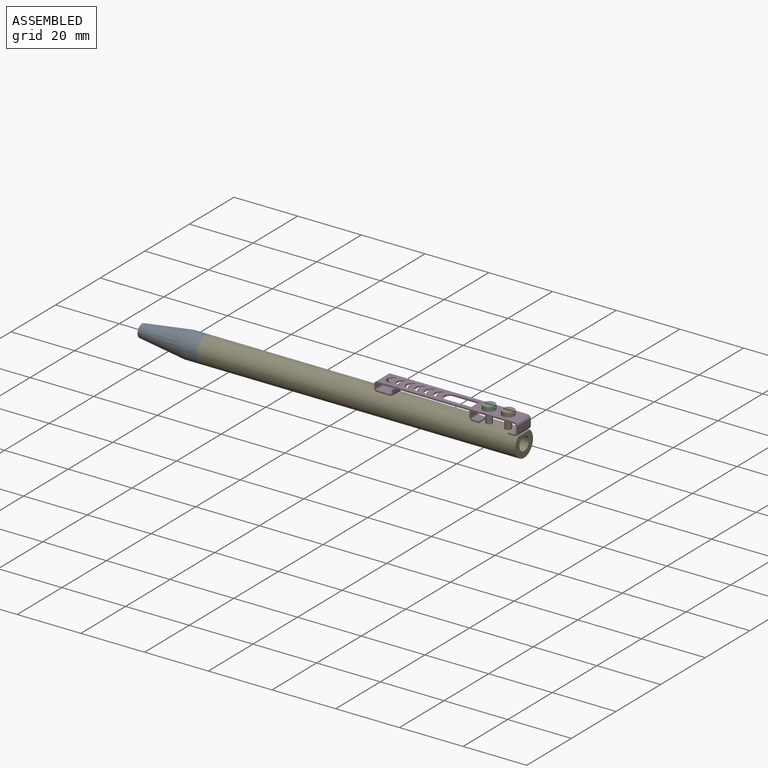
[diagram: assembled view]
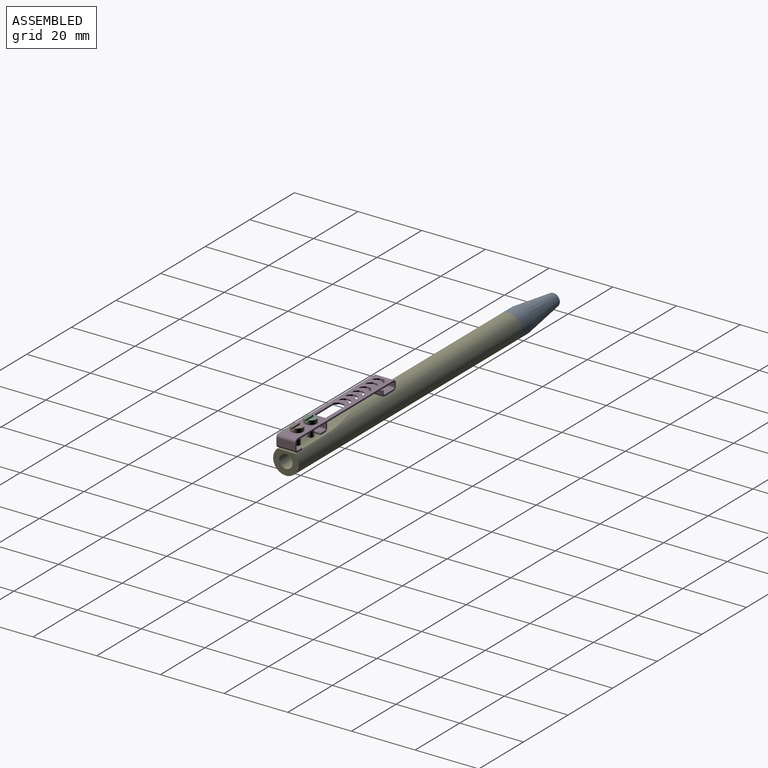
[diagram: assembled view, second angle]
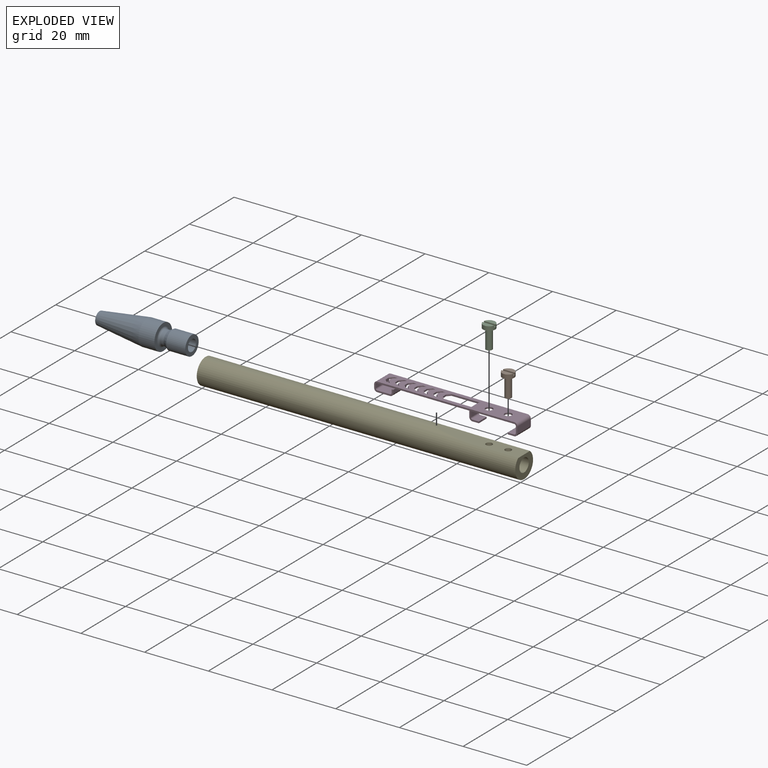
[diagram: exploded view]
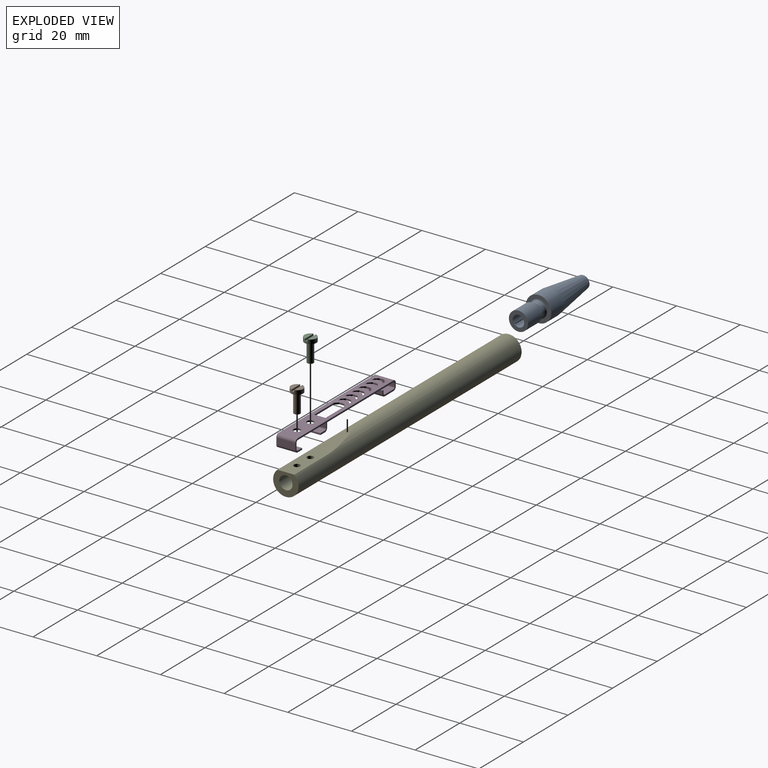
[diagram: exploded view, second angle]
ASSEMBLY  parts=5 mates=6
PART A: 13 faces, bbox 29x8x8 mm
  f0: cylinder r=4mm len=8mm, axis (1,0,0), area 125.7mm2, adj f1,f12
  f1: cone r=4mm half-angle=7.6deg, axis (1,0,0), area 285.2mm2, adj f0,f2
  f2: plane 4x4mm, normal (-1,0,0), area 9.4mm2, adj f1,f3
  f3: cylinder r=1mm len=5mm, axis (1,0,0), area 31.4mm2, adj f2,f4
  f4: plane 3.6x3.6mm, normal (1,0,0), area 7mm2, adj f3,f5
  f5: cylinder r=1.8mm len=24mm, axis (1,0,0), area 271.4mm2, adj f4,f6
  f6: plane 6x6mm, normal (1,0,0), area 18.1mm2, adj f5,f7
  f7: cylinder r=3mm len=6mm, axis (1,0,0), area 113.1mm2, adj f6,f8
  f8: cone r=3mm half-angle=30deg, axis (1,0,0), area 22.4mm2, adj f7,f9
  f9: torus R=2.85mm, axis (1,0,0), area 4.5mm2, adj f8,f10
  f10: cylinder r=2.25mm len=4.5mm, axis (1,0,0), area 13.3mm2, adj f9,f11
  f11: torus R=2.85mm, axis (1,0,0), area 14.6mm2, adj f10,f12
  f12: plane 8x8mm, normal (1,0,0), area 24.7mm2, adj f0,f11
PART B: 9 faces, bbox 3.8x7.3x3.8 mm
  f0: cylinder r=1.9mm len=3.8mm, axis (0,1,0), area 14.7mm2, adj f1,f4,f5,f6,f7,f8
  f1: plane 3.74x1.55mm, normal (0,-1,0), area 4.3mm2, adj f0,f7
  f2: cylinder r=1mm len=6mm, axis (0,1,0), area 37.7mm2, adj f3,f5
  f3: plane 2x2mm, normal (0,1,0), area 3.1mm2, adj f2
  f4: plane 3.74x1.55mm, normal (0,-1,0), area 4.3mm2, adj f0,f8
  f5: plane 3.8x3.8mm, normal (0,1,0), area 8.2mm2, adj f0,f2
  f6: plane 3.8x0.7mm, normal (0,-1,0), area 2.6mm2, adj f0,f7,f8
  f7: plane 3.74x0.6mm, normal (0,0,-1), area 2.2mm2, adj f0,f1,f6
  f8: plane 3.74x0.6mm, normal (0,0,1), area 2.2mm2, adj f0,f4,f6
PART C: same geometry as B
PART D: 92 faces, bbox 45x6x4 mm
  f0: plane 43x6mm, normal (0,0,-1), area 195.4mm2, adj f14,f15,f16,f17,f18,f19,f20,f21
  f1: plane 43x6mm, normal (0,0,1), area 195.4mm2, adj f14,f15,f16,f17,f18,f19,f20,f21
  f2: plane 6x4mm, normal (0,0,-1), area 24mm2, adj f14,f15,f87,f91
  f3: plane 6x1mm, normal (1,0,0), area 6mm2, adj f4,f14,f15,f87
  f4: plane 6x0.5mm, normal (0,0,1), area 3mm2, adj f3,f5,f14,f15
  f5: plane 6x1mm, normal (-1,0,0), area 6mm2, adj f4,f14,f15,f80
  f6: plane 6x4mm, normal (0,0,1), area 24mm2, adj f14,f15,f80,f81
  f7: plane 6x1mm, normal (1,0,0), area 6mm2, adj f14,f15,f81,f82
  f8: plane 6x2mm, normal (-1,0,0), area 12mm2, adj f14,f15,f83,f84
  f9: plane 6x2mm, normal (0,0,1), area 12mm2, adj f10,f14,f15,f84
  f10: plane 6x0.5mm, normal (-1,0,0), area 3mm2, adj f9,f11,f14,f15
  f11: plane 6x2mm, normal (0,0,-1), area 12mm2, adj f10,f14,f15,f88
  f12: plane 6x2mm, normal (1,0,0), area 12mm2, adj f14,f15,f88,f89
  f13: plane 6x1mm, normal (-1,0,0), area 6mm2, adj f14,f15,f90,f91
  f14: plane 45x4mm, normal (0,-1,0), area 29.4mm2, adj f0,f1,f2,f3,f4,f5,f6,f7
  f15: plane 45x4mm, normal (0,1,0), area 29.4mm2, adj f0,f1,f2,f3,f4,f5,f6,f7
  f16: cylinder r=1.1mm len=2.2mm, axis (0,0,1), area 3.5mm2, adj f0,f1
  f17: cylinder r=1.1mm len=2.2mm, axis (0,0,1), area 3.5mm2, adj f0,f1
  f18: plane 1x1mm, normal (-0.71,0.71,0), area 0.7mm2, adj f0,f1,f19,f23
  f19: plane 1x0.5mm, normal (0,-1,0), area 0.5mm2, adj f0,f1,f18,f20
  f20: plane 1x1mm, normal (0.71,-0.71,0), area 0.7mm2, adj f0,f1,f19,f21
  f21: plane 1.5x0.5mm, normal (1,0,0), area 0.8mm2, adj f0,f1,f20,f22
  f22: plane 1x1mm, normal (0.71,0.71,0), area 0.7mm2, adj f0,f1,f21,f24
  f23: plane 1.5x0.5mm, normal (-1,0,0), area 0.8mm2, adj f0,f1,f18,f25
  f24: plane 1x0.5mm, normal (0,1,0), area 0.5mm2, adj f0,f1,f22,f25
  f25: plane 1x1mm, normal (-0.71,-0.71,0), area 0.7mm2, adj f0,f1,f23,f24
  f26: plane 1x1mm, normal (-0.71,0.71,0), area 0.7mm2, adj f0,f1,f27,f31
  f27: plane 1x0.5mm, normal (0,-1,0), area 0.5mm2, adj f0,f1,f26,f28
  f28: plane 1x1mm, normal (0.71,-0.71,0), area 0.7mm2, adj f0,f1,f27,f29
  f29: plane 1.5x0.5mm, normal (1,0,0), area 0.8mm2, adj f0,f1,f28,f30
  f30: plane 1x1mm, normal (0.71,0.71,0), area 0.7mm2, adj f0,f1,f29,f32
  f31: plane 1.5x0.5mm, normal (-1,0,0), area 0.8mm2, adj f0,f1,f26,f33
  f32: plane 1x0.5mm, normal (0,1,0), area 0.5mm2, adj f0,f1,f30,f33
  f33: plane 1x1mm, normal (-0.71,-0.71,0), area 0.7mm2, adj f0,f1,f31,f32
  f34: plane 1x1mm, normal (-0.71,0.71,0), area 0.7mm2, adj f0,f1,f35,f39
  f35: plane 1x0.5mm, normal (0,-1,0), area 0.5mm2, adj f0,f1,f34,f36
  f36: plane 1x1mm, normal (0.71,-0.71,0), area 0.7mm2, adj f0,f1,f35,f37
  f37: plane 1.5x0.5mm, normal (1,0,0), area 0.8mm2, adj f0,f1,f36,f38
  f38: plane 1x1mm, normal (0.71,0.71,0), area 0.7mm2, adj f0,f1,f37,f40
  f39: plane 1.5x0.5mm, normal (-1,0,0), area 0.8mm2, adj f0,f1,f34,f41
  f40: plane 1x0.5mm, normal (0,1,0), area 0.5mm2, adj f0,f1,f38,f41
  f41: plane 1x1mm, normal (-0.71,-0.71,0), area 0.7mm2, adj f0,f1,f39,f40
  f42: plane 1x1mm, normal (-0.71,0.71,0), area 0.7mm2, adj f0,f1,f43,f47
  f43: plane 1x0.5mm, normal (0,-1,0), area 0.5mm2, adj f0,f1,f42,f44
  f44: plane 1x1mm, normal (0.71,-0.71,0), area 0.7mm2, adj f0,f1,f43,f45
  f45: plane 1.5x0.5mm, normal (1,0,0), area 0.8mm2, adj f0,f1,f44,f46
  f46: plane 1x1mm, normal (0.71,0.71,0), area 0.7mm2, adj f0,f1,f45,f48
  f47: plane 1.5x0.5mm, normal (-1,0,0), area 0.8mm2, adj f0,f1,f42,f49
  f48: plane 1x0.5mm, normal (0,1,0), area 0.5mm2, adj f0,f1,f46,f49
  f49: plane 1x1mm, normal (-0.71,-0.71,0), area 0.7mm2, adj f0,f1,f47,f48
  f50: plane 1x1mm, normal (-0.71,0.71,0), area 0.7mm2, adj f0,f1,f51,f55
  f51: plane 1x0.5mm, normal (0,-1,0), area 0.5mm2, adj f0,f1,f50,f52
  f52: plane 1x1mm, normal (0.71,-0.71,0), area 0.7mm2, adj f0,f1,f51,f53
  f53: plane 1.5x0.5mm, normal (1,0,0), area 0.8mm2, adj f0,f1,f52,f54
  f54: plane 1x1mm, normal (0.71,0.71,0), area 0.7mm2, adj f0,f1,f53,f56
  f55: plane 1.5x0.5mm, normal (-1,0,0), area 0.8mm2, adj f0,f1,f50,f57
  f56: plane 1x0.5mm, normal (0,1,0), area 0.5mm2, adj f0,f1,f54,f57
  f57: plane 1x1mm, normal (-0.71,-0.71,0), area 0.7mm2, adj f0,f1,f55,f56
  f58: plane 1x0.5mm, normal (0,-1,0), area 0.5mm2, adj f0,f1,f59,f63
  f59: plane 1x1mm, normal (0.71,-0.71,0), area 0.7mm2, adj f0,f1,f58,f60
  f60: plane 1.5x0.5mm, normal (1,0,0), area 0.8mm2, adj f0,f1,f59,f61
  f61: plane 1x1mm, normal (0.71,0.71,0), area 0.7mm2, adj f0,f1,f60,f62
  f62: plane 1x0.5mm, normal (0,1,0), area 0.5mm2, adj f0,f1,f61,f64
  f63: plane 1x1mm, normal (-0.71,0.71,0), area 0.7mm2, adj f0,f1,f58,f65
  f64: plane 1x1mm, normal (-0.71,-0.71,0), area 0.7mm2, adj f0,f1,f62,f65
  f65: plane 1.5x0.5mm, normal (-1,0,0), area 0.8mm2, adj f0,f1,f63,f64
  f66: plane 9x0.5mm, normal (0,-1,0), area 4.2mm2, adj f0,f1,f67,f86
  f67: plane 1x1mm, normal (0.71,-0.71,0), area 0.7mm2, adj f0,f1,f66,f68
  f68: plane 1.5x0.5mm, normal (1,0,0), area 0.8mm2, adj f0,f1,f67,f69
  f69: plane 1x1mm, normal (0.71,0.71,0), area 0.7mm2, adj f0,f1,f68,f70
  f70: plane 9x0.5mm, normal (0,1,0), area 4.2mm2, adj f0,f1,f69,f86
  f71: plane 3.5x2mm, normal (-1,0,0), area 7mm2, adj f72,f74,f85,f86
  f72: plane 3.5x3mm, normal (0,-1,0), area 2.9mm2, adj f0,f71,f73,f75,f76,f77,f78,f79
  f73: plane 3.5x2mm, normal (0,0,-1), area 7mm2, adj f72,f74,f75,f85
  f74: plane 3.5x3mm, normal (0,1,0), area 2.9mm2, adj f0,f71,f73,f75,f76,f77,f78,f79
  f75: plane 3.5x0.5mm, normal (1,0,0), area 1.7mm2, adj f72,f73,f74,f77
  f76: plane 3.5x2mm, normal (1,0,0), area 7mm2, adj f72,f74,f78,f79
  f77: plane 3.5x2mm, normal (0,0,1), area 7mm2, adj f72,f74,f75,f79
  f78: cylinder r=0.5mm len=3.5mm, axis (0,-1,0), area 2.7mm2, adj f0,f72,f74,f76
  f79: cylinder r=0.5mm len=3.5mm, axis (0,-1,0), area 2.7mm2, adj f72,f74,f76,f77
  f80: cylinder r=0.5mm len=6mm, axis (0,-1,0), area 4.7mm2, adj f5,f6,f14,f15
  f81: cylinder r=0.5mm len=6mm, axis (0,-1,0), area 4.7mm2, adj f6,f7,f14,f15
  f82: cylinder r=0.5mm len=6mm, axis (0,-1,0), area 4.7mm2, adj f0,f7,f14,f15
  f83: cylinder r=0.5mm len=6mm, axis (0,-1,0), area 4.7mm2, adj f0,f8,f14,f15
  f84: cylinder r=0.5mm len=6mm, axis (0,-1,0), area 4.7mm2, adj f8,f9,f14,f15
  f85: cylinder r=1mm len=3.5mm, axis (0,1,0), area 5.5mm2, adj f71,f72,f73,f74
  f86: cylinder r=1mm len=3.5mm, axis (0,-1,0), area 5.5mm2, adj f1,f66,f70,f71,f72,f74
  f87: cylinder r=1mm len=6mm, axis (0,1,0), area 9.4mm2, adj f2,f3,f14,f15
  f88: cylinder r=1mm len=6mm, axis (0,1,0), area 9.4mm2, adj f11,f12,f14,f15
  f89: cylinder r=1mm len=6mm, axis (0,1,0), area 9.4mm2, adj f1,f12,f14,f15
  f90: cylinder r=1mm len=6mm, axis (0,1,0), area 9.4mm2, adj f1,f13,f14,f15
  f91: cylinder r=1mm len=6mm, axis (0,1,0), area 9.4mm2, adj f2,f13,f14,f15
PART E: 9 faces, bbox 100x8x8 mm
  f0: cylinder r=4mm len=100mm, axis (1,0,0), area 2371.5mm2, adj f1,f2,f4,f5,f6
  f1: plane 8x7mm, normal (1,0,0), area 32.8mm2, adj f0,f3,f4
  f2: plane 8x8mm, normal (-1,0,0), area 36.4mm2, adj f0,f3
  f3: cylinder r=2.1mm len=100mm, axis (1,0,0), area 1313mm2, adj f1,f2,f7,f8
  f4: plane 14.82x5.29mm, normal (0,0,1), area 72.1mm2, adj f0,f1,f6,f7,f8
  f5: plane 9.26x4.83mm, normal (0.09,0,1), area 30.6mm2, adj f0,f6
  f6: cylinder r=50mm len=5.29mm, axis (0,1,0), area 22.4mm2, adj f0,f4,f5
  f7: cylinder r=1mm len=2mm, axis (0,0,1), area 6.4mm2, adj f3,f4
  f8: cylinder r=1mm len=2mm, axis (0,0,1), area 6.4mm2, adj f3,f4
PLACE A t=(-104.86,0,0)mm
PLACE B rot(axis=(-1,0,0),90deg) t=(-9.86,0,1)mm
PLACE C rot(axis=(-1,0,0),90deg) t=(-15.86,0,1)mm
PLACE D t=(-4.86,0,3.5)mm
PLACE E t=(-4.86,0,0)mm
MATE slider D.f16 <-> E.f7  axis (0,0,1) through (-15.86,0,7)mm
MATE planar D.f11 <-> E.f4  axis (0,0,-1) through (-6.86,0,3)mm
MATE fastened A.f0 <-> E.f0  axis (1,0,0) through (-104.86,0,0)mm
MATE slider D.f17 <-> E.f8  axis (0,0,1) through (-9.86,0,7)mm
MATE fastened C.f2 <-> D.f16  axis (0,0,-1) through (-15.86,0,7)mm
MATE revolute B.f2 <-> D.f17  axis (0,0,-1) through (-9.86,0,7)mm
